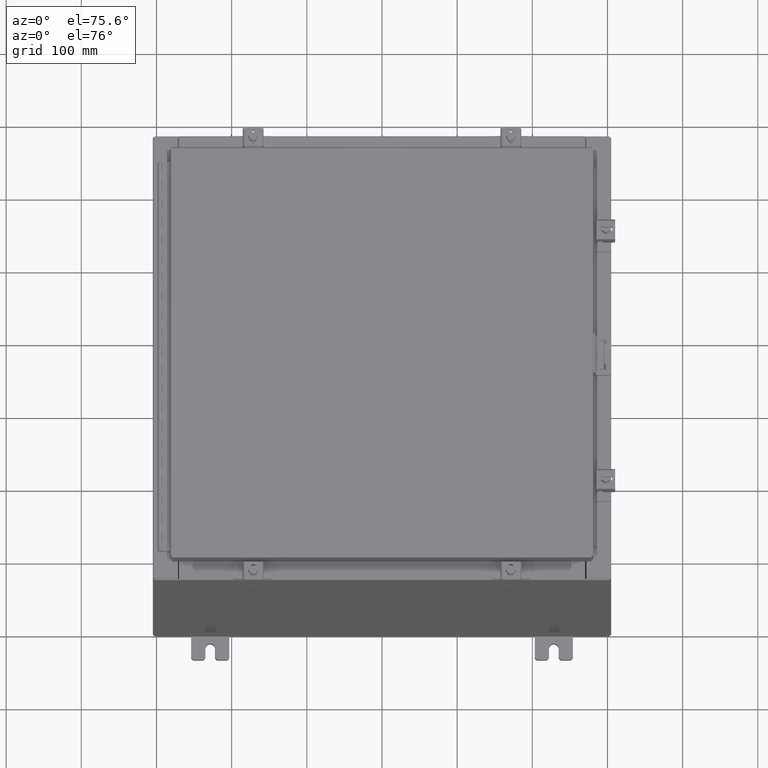
[diagram: clean part render]
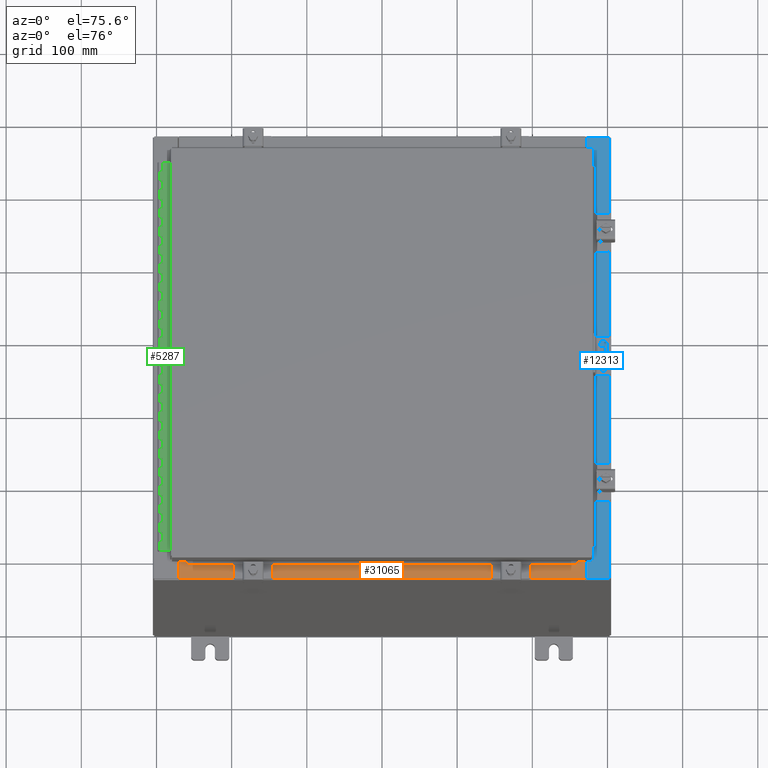
[diagram: same view with three faces highlighted in distinct colors, each labeled with its STEP entity id]
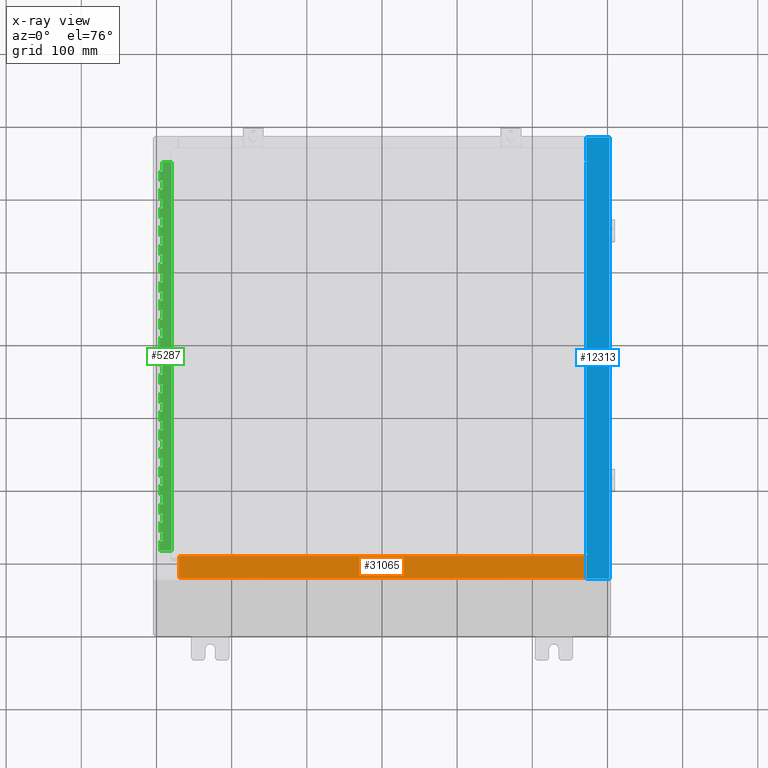
[diagram: x-ray of the same camera — body ghosted, the three highlighted faces saturated]
A machine part, auxiliary view with three faces highlighted in distinct colors.
The next image is the same camera in x-ray (body ghosted, the three faces saturated) — at least one of them is partly hidden behind the body in this view.
Their STEP definitions:

[orange] entity #31065 — the highlighted planar face has unit normal (-0, -0, 1).
#87 = PLANE ( 'NONE',  #28107 ) ;
#536 = ORIENTED_EDGE ( 'NONE', *, *, #4189, .T. ) ;
#1028 = CARTESIAN_POINT ( 'NONE',  ( -10.63720000000000200, -0.08770000000000026400, 6.000000000000001800 ) ) ;
#1446 = LINE ( 'NONE', #28170, #13257 ) ;
#2676 = CARTESIAN_POINT ( 'NONE',  ( -3.422455537835030400E-018, 1.610972251716582100E-014, 6.000000000000001800 ) ) ;
#2701 = DIRECTION ( 'NONE',  ( -0.0000000000000000000, 1.000000000000000000, -2.674785894579892700E-015 ) ) ;
#2769 = CARTESIAN_POINT ( 'NONE',  ( 10.63720000000000200, -1.287299999999998800, 6.000000000000006200 ) ) ;
#2957 = ORIENTED_EDGE ( 'NONE', *, *, #13423, .F. ) ;
#4189 = EDGE_CURVE ( 'NONE', #27070, #28362, #1446, .T. ) ;
#5225 = DIRECTION ( 'NONE',  ( 0.0000000000000000000, -1.000000000000000000, 2.674785894579892700E-015 ) ) ;
#7357 = LINE ( 'NONE', #27724, #19850 ) ;
#9517 = FACE_OUTER_BOUND ( 'NONE', #14166, .T. ) ;
#9544 = VERTEX_POINT ( 'NONE', #2769 ) ;
#12433 = CARTESIAN_POINT ( 'NONE',  ( -10.63720000000000200, -1.287299999999998100, 6.000000000000004400 ) ) ;
#13257 = VECTOR ( 'NONE', #19251, 39.37007874015748100 ) ;
#13423 = EDGE_CURVE ( 'NONE', #9544, #19119, #28802, .T. ) ;
#13658 = ORIENTED_EDGE ( 'NONE', *, *, #22190, .F. ) ;
#13860 = DIRECTION ( 'NONE',  ( -1.000000000000000000, 0.0000000000000000000, 0.0000000000000000000 ) ) ;
#14037 = CARTESIAN_POINT ( 'NONE',  ( 10.63720000000000400, -1.287299999999998800, 6.000000000000003600 ) ) ;
#14166 = EDGE_LOOP ( 'NONE', ( #15525, #2957, #13658, #536 ) ) ;
#15525 = ORIENTED_EDGE ( 'NONE', *, *, #28753, .F. ) ;
#15553 = VECTOR ( 'NONE', #13860, 39.37007874015748100 ) ;
#19119 = VERTEX_POINT ( 'NONE', #12433 ) ;
#19251 = DIRECTION ( 'NONE',  ( -1.000000000000000000, 0.0000000000000000000, 0.0000000000000000000 ) ) ;
#19814 = VECTOR ( 'NONE', #2701, 39.37007874015748100 ) ;
#19850 = VECTOR ( 'NONE', #30238, 39.37007874015748100 ) ;
#20143 = DIRECTION ( 'NONE',  ( 0.0000000000000000000, 2.674785894579892700E-015, 1.000000000000000000 ) ) ;
#22190 = EDGE_CURVE ( 'NONE', #27070, #9544, #7357, .T. ) ;
#23858 = CARTESIAN_POINT ( 'NONE',  ( 10.63720000000000400, -0.08770000000000002800, 6.000000000000001800 ) ) ;
#27070 = VERTEX_POINT ( 'NONE', #23858 ) ;
#27228 = LINE ( 'NONE', #27584, #19814 ) ;
#27584 = CARTESIAN_POINT ( 'NONE',  ( -10.63720000000000200, -0.07469999999999973900, 6.000000000000001800 ) ) ;
#27724 = CARTESIAN_POINT ( 'NONE',  ( 10.63720000000000200, -1.300299999999999800, 6.000000000000006200 ) ) ;
#28107 = AXIS2_PLACEMENT_3D ( 'NONE', #2676, #20143, #5225 ) ;
#28170 = CARTESIAN_POINT ( 'NONE',  ( -3.422455537835030400E-018, -0.08770000000000026400, 6.000000000000001800 ) ) ;
#28362 = VERTEX_POINT ( 'NONE', #1028 ) ;
#28753 = EDGE_CURVE ( 'NONE', #19119, #28362, #27228, .T. ) ;
#28802 = LINE ( 'NONE', #14037, #15553 ) ;
#30238 = DIRECTION ( 'NONE',  ( -0.0000000000000000000, -1.000000000000000000, 3.566381192773190000E-015 ) ) ;
#31065 = ADVANCED_FACE ( 'NONE', ( #9517 ), #87, .T. ) ;

[blue] entity #12313 — the highlighted planar face has unit normal (-0, 0, -1).
#268 = VERTEX_POINT ( 'NONE', #4077 ) ;
#631 = CARTESIAN_POINT ( 'NONE',  ( 10.71270000000004300, 10.59374999999998400, 11.92530000000000900 ) ) ;
#1076 = VECTOR ( 'NONE', #27878, 39.37007874015748100 ) ;
#1256 = AXIS2_PLACEMENT_3D ( 'NONE', #10384, #25072, #20069 ) ;
#1326 = VERTEX_POINT ( 'NONE', #30073 ) ;
#1703 = ORIENTED_EDGE ( 'NONE', *, *, #6124, .T. ) ;
#1774 = CIRCLE ( 'NONE', #8430, 0.01867499999999949400 ) ;
#1790 = CARTESIAN_POINT ( 'NONE',  ( 10.75005000000004300, -10.59375000000000200, 11.92530000000000900 ) ) ;
#1810 = EDGE_CURVE ( 'NONE', #1326, #22973, #21977, .T. ) ;
#2076 = VECTOR ( 'NONE', #31532, 39.37007874015748100 ) ;
#2723 = DIRECTION ( 'NONE',  ( 1.000000000000000000, 0.0000000000000000000, -7.132762385546384700E-015 ) ) ;
#2893 = DIRECTION ( 'NONE',  ( 7.132762385546384700E-015, 0.0000000000000000000, 1.000000000000000000 ) ) ;
#3795 = VERTEX_POINT ( 'NONE', #26496 ) ;
#4073 = ORIENTED_EDGE ( 'NONE', *, *, #9649, .F. ) ;
#4077 = CARTESIAN_POINT ( 'NONE',  ( 10.75005000000004300, -10.63110000000000200, 11.92530000000000900 ) ) ;
#5135 = LINE ( 'NONE', #15037, #30890 ) ;
#5543 = CARTESIAN_POINT ( 'NONE',  ( 10.69970000000004100, 0.0000000000000000000, 11.92530000000000900 ) ) ;
#6124 = EDGE_CURVE ( 'NONE', #32399, #7419, #25204, .T. ) ;
#6305 = CARTESIAN_POINT ( 'NONE',  ( 10.69970000000004100, 0.0000000000000000000, 11.92530000000000900 ) ) ;
#6580 = VERTEX_POINT ( 'NONE', #16901 ) ;
#6816 = VECTOR ( 'NONE', #25540, 39.37007874015748100 ) ;
#7171 = CARTESIAN_POINT ( 'NONE',  ( 10.75005000000004300, 10.63109999999998400, 11.92530000000000900 ) ) ;
#7404 = ORIENTED_EDGE ( 'NONE', *, *, #31565, .F. ) ;
#7419 = VERTEX_POINT ( 'NONE', #8265 ) ;
#8265 = CARTESIAN_POINT ( 'NONE',  ( 11.91230000000003900, -11.92530000000000400, 11.92530000000000000 ) ) ;
#8268 = CARTESIAN_POINT ( 'NONE',  ( 10.69970000000004100, -11.92530000000000400, 11.92530000000000900 ) ) ;
#8430 = AXIS2_PLACEMENT_3D ( 'NONE', #17812, #2893, #20345 ) ;
#8718 = LINE ( 'NONE', #26763, #2076 ) ;
#8791 = DIRECTION ( 'NONE',  ( 0.0000000000000000000, -1.000000000000000000, 0.0000000000000000000 ) ) ;
#9298 = EDGE_LOOP ( 'NONE', ( #7404, #17402, #1703, #27068, #25950, #14939, #9989, #28313, #15896, #15846, #4073, #24326 ) ) ;
#9345 = VECTOR ( 'NONE', #25030, 39.37007874015748100 ) ;
#9649 = EDGE_CURVE ( 'NONE', #13563, #20852, #5135, .T. ) ;
#9989 = ORIENTED_EDGE ( 'NONE', *, *, #18994, .F. ) ;
#10384 = CARTESIAN_POINT ( 'NONE',  ( 8.532114493236847900E-014, 0.0000000000000000000, 11.92530000000008500 ) ) ;
#10612 = VERTEX_POINT ( 'NONE', #12069 ) ;
#11202 = VECTOR ( 'NONE', #2723, 39.37007874015748100 ) ;
#11499 = CARTESIAN_POINT ( 'NONE',  ( 10.69970000000004100, -10.63110000000000200, 11.92530000000000900 ) ) ;
#12069 = CARTESIAN_POINT ( 'NONE',  ( 10.69970000000004100, 10.63109999999998600, 11.92530000000000900 ) ) ;
#12072 = DIRECTION ( 'NONE',  ( 1.000000000000000000, 0.0000000000000000000, 0.0000000000000000000 ) ) ;
#12313 = ADVANCED_FACE ( 'NONE', ( #28080 ), #28017, .F. ) ;
#12576 = VECTOR ( 'NONE', #30094, 39.37007874015748100 ) ;
#12581 = EDGE_CURVE ( 'NONE', #6580, #3795, #20250, .T. ) ;
#13563 = VERTEX_POINT ( 'NONE', #1790 ) ;
#14421 = LINE ( 'NONE', #5543, #1076 ) ;
#14939 = ORIENTED_EDGE ( 'NONE', *, *, #27500, .T. ) ;
#15037 = CARTESIAN_POINT ( 'NONE',  ( 10.75005000000004300, -10.59375000000000200, 11.92530000000000900 ) ) ;
#15159 = CARTESIAN_POINT ( 'NONE',  ( 11.91230000000003900, -11.92530000000000400, 11.92530000000000000 ) ) ;
#15342 = VECTOR ( 'NONE', #12072, 39.37007874015748100 ) ;
#15536 = CARTESIAN_POINT ( 'NONE',  ( 10.75005000000004300, 10.61242499999998400, 11.92530000000000900 ) ) ;
#15541 = DIRECTION ( 'NONE',  ( 7.132762385546384700E-015, 0.0000000000000000000, 1.000000000000000000 ) ) ;
#15577 = DIRECTION ( 'NONE',  ( 1.000000000000000000, 0.0000000000000000000, 0.0000000000000000000 ) ) ;
#15846 = ORIENTED_EDGE ( 'NONE', *, *, #27355, .F. ) ;
#15896 = ORIENTED_EDGE ( 'NONE', *, *, #19195, .F. ) ;
#16064 = VECTOR ( 'NONE', #8791, 39.37007874015748100 ) ;
#16901 = CARTESIAN_POINT ( 'NONE',  ( 10.75005000000004300, 10.59374999999998400, 11.92530000000000900 ) ) ;
#17402 = ORIENTED_EDGE ( 'NONE', *, *, #25043, .T. ) ;
#17812 = CARTESIAN_POINT ( 'NONE',  ( 10.75005000000004300, -10.61242500000000200, 11.92530000000000900 ) ) ;
#18197 = CARTESIAN_POINT ( 'NONE',  ( 8.532114493236847900E-014, 11.92529999999999600, 11.92530000000008500 ) ) ;
#18994 = EDGE_CURVE ( 'NONE', #3795, #10612, #26685, .T. ) ;
#19195 = EDGE_CURVE ( 'NONE', #19929, #6580, #8718, .T. ) ;
#19568 = CARTESIAN_POINT ( 'NONE',  ( 10.69970000000004100, -10.63110000000000200, 11.92530000000000900 ) ) ;
#19729 = AXIS2_PLACEMENT_3D ( 'NONE', #15536, #15541, #15577 ) ;
#19929 = VERTEX_POINT ( 'NONE', #631 ) ;
#20069 = DIRECTION ( 'NONE',  ( -1.000000000000000000, 0.0000000000000000000, 7.132762385546384700E-015 ) ) ;
#20250 = CIRCLE ( 'NONE', #19729, 0.01867499999999949400 ) ;
#20345 = DIRECTION ( 'NONE',  ( 1.000000000000000000, 0.0000000000000000000, 0.0000000000000000000 ) ) ;
#20852 = VERTEX_POINT ( 'NONE', #29214 ) ;
#21178 = VECTOR ( 'NONE', #31392, 39.37007874015748100 ) ;
#21977 = LINE ( 'NONE', #18197, #21178 ) ;
#22558 = DIRECTION ( 'NONE',  ( -1.000000000000000000, 0.0000000000000000000, 0.0000000000000000000 ) ) ;
#22573 = CARTESIAN_POINT ( 'NONE',  ( 10.71270000000004300, -10.59374999999999800, 11.92530000000000900 ) ) ;
#22749 = LINE ( 'NONE', #6305, #16064 ) ;
#22973 = VERTEX_POINT ( 'NONE', #29765 ) ;
#23925 = CARTESIAN_POINT ( 'NONE',  ( 8.532114493236847900E-014, -11.92530000000000400, 11.92530000000008500 ) ) ;
#24326 = ORIENTED_EDGE ( 'NONE', *, *, #29461, .F. ) ;
#25030 = DIRECTION ( 'NONE',  ( -0.0000000000000000000, 1.000000000000000000, -0.0000000000000000000 ) ) ;
#25043 = EDGE_CURVE ( 'NONE', #31981, #32399, #22749, .T. ) ;
#25072 = DIRECTION ( 'NONE',  ( -7.132762385546384700E-015, 0.0000000000000000000, -1.000000000000000000 ) ) ;
#25204 = LINE ( 'NONE', #23925, #11202 ) ;
#25540 = DIRECTION ( 'NONE',  ( -1.000000000000000000, 0.0000000000000000000, 0.0000000000000000000 ) ) ;
#25950 = ORIENTED_EDGE ( 'NONE', *, *, #1810, .T. ) ;
#26496 = CARTESIAN_POINT ( 'NONE',  ( 10.75005000000004300, 10.63109999999998400, 11.92530000000000900 ) ) ;
#26685 = LINE ( 'NONE', #7171, #6816 ) ;
#26763 = CARTESIAN_POINT ( 'NONE',  ( 10.71270000000004300, 10.59374999999998400, 11.92530000000000900 ) ) ;
#27068 = ORIENTED_EDGE ( 'NONE', *, *, #32270, .F. ) ;
#27355 = EDGE_CURVE ( 'NONE', #20852, #19929, #30042, .T. ) ;
#27378 = LINE ( 'NONE', #15159, #12576 ) ;
#27500 = EDGE_CURVE ( 'NONE', #22973, #10612, #14421, .T. ) ;
#27878 = DIRECTION ( 'NONE',  ( 0.0000000000000000000, -1.000000000000000000, 0.0000000000000000000 ) ) ;
#28017 = PLANE ( 'NONE',  #1256 ) ;
#28080 = FACE_OUTER_BOUND ( 'NONE', #9298, .T. ) ;
#28313 = ORIENTED_EDGE ( 'NONE', *, *, #12581, .F. ) ;
#28601 = LINE ( 'NONE', #19568, #15342 ) ;
#29214 = CARTESIAN_POINT ( 'NONE',  ( 10.71270000000004300, -10.59375000000000200, 11.92530000000000900 ) ) ;
#29461 = EDGE_CURVE ( 'NONE', #268, #13563, #1774, .T. ) ;
#29765 = CARTESIAN_POINT ( 'NONE',  ( 10.69970000000004100, 11.92529999999999600, 11.92530000000000900 ) ) ;
#30042 = LINE ( 'NONE', #22573, #9345 ) ;
#30073 = CARTESIAN_POINT ( 'NONE',  ( 11.91230000000003900, 11.92529999999999600, 11.92530000000000000 ) ) ;
#30094 = DIRECTION ( 'NONE',  ( -0.0000000000000000000, -1.000000000000000000, -0.0000000000000000000 ) ) ;
#30890 = VECTOR ( 'NONE', #22558, 39.37007874015748100 ) ;
#31392 = DIRECTION ( 'NONE',  ( -1.000000000000000000, 0.0000000000000000000, 7.132762385546384700E-015 ) ) ;
#31532 = DIRECTION ( 'NONE',  ( 1.000000000000000000, 0.0000000000000000000, 0.0000000000000000000 ) ) ;
#31565 = EDGE_CURVE ( 'NONE', #31981, #268, #28601, .T. ) ;
#31981 = VERTEX_POINT ( 'NONE', #11499 ) ;
#32270 = EDGE_CURVE ( 'NONE', #1326, #7419, #27378, .T. ) ;
#32399 = VERTEX_POINT ( 'NONE', #8268 ) ;

[green] entity #5287 — the highlighted planar face has unit normal (-0, -0, 1).
#10 = DIRECTION ( 'NONE',  ( 3.389037039080723100E-015, 1.000000000000000000, -0.0000000000000000000 ) ) ;
#106 = DIRECTION ( 'NONE',  ( 0.0000000000000000000, -0.0000000000000000000, -1.000000000000000000 ) ) ;
#167 = CARTESIAN_POINT ( 'NONE',  ( -0.6869999999999978300, 0.6754999999999996600, -15.50000000000000000 ) ) ;
#183 = LINE ( 'NONE', #15991, #20182 ) ;
#194 = EDGE_CURVE ( 'NONE', #16636, #10680, #6085, .T. ) ;
#214 = CARTESIAN_POINT ( 'NONE',  ( -0.6869999999999982800, 0.5504999999999997700, -10.00000000000000000 ) ) ;
#231 = VERTEX_POINT ( 'NONE', #21003 ) ;
#234 = LINE ( 'NONE', #8871, #31974 ) ;
#252 = CARTESIAN_POINT ( 'NONE',  ( -0.6869999999999978300, 0.6754999999999996600, -0.5000000000000000000 ) ) ;
#288 = CARTESIAN_POINT ( 'NONE',  ( -0.6869999999999978300, 0.6754999999999996600, -3.500000000000000000 ) ) ;
#327 = CARTESIAN_POINT ( 'NONE',  ( -0.6869999999999978300, 0.6754999999999996600, -14.49999999999999800 ) ) ;
#475 = CARTESIAN_POINT ( 'NONE',  ( -0.6869999999999978300, 0.6754999999999996600, -4.500000000000000000 ) ) ;
#477 = DIRECTION ( 'NONE',  ( 0.0000000000000000000, -0.0000000000000000000, -1.000000000000000000 ) ) ;
#550 = DIRECTION ( 'NONE',  ( 3.389037039080723100E-015, 1.000000000000000000, -0.0000000000000000000 ) ) ;
#559 = EDGE_CURVE ( 'NONE', #8083, #29694, #16567, .T. ) ;
#619 = CARTESIAN_POINT ( 'NONE',  ( -0.6869999999999982800, 0.5504999999999997700, -1.000000000000000000 ) ) ;
#817 = LINE ( 'NONE', #26938, #28973 ) ;
#829 = ORIENTED_EDGE ( 'NONE', *, *, #32150, .F. ) ;
#893 = VERTEX_POINT ( 'NONE', #23673 ) ;
#1029 = VECTOR ( 'NONE', #1254, 39.37007874015748100 ) ;
#1066 = ORIENTED_EDGE ( 'NONE', *, *, #16346, .F. ) ;
#1150 = EDGE_CURVE ( 'NONE', #8132, #13276, #25892, .T. ) ;
#1173 = CARTESIAN_POINT ( 'NONE',  ( -0.6869999999999978300, 0.6754999999999996600, -2.999999999999999600 ) ) ;
#1177 = ORIENTED_EDGE ( 'NONE', *, *, #21566, .F. ) ;
#1220 = CARTESIAN_POINT ( 'NONE',  ( -0.6869999999999973900, 0.8004999999999995500, -7.499999999999999100 ) ) ;
#1234 = ORIENTED_EDGE ( 'NONE', *, *, #23469, .F. ) ;
#1245 = CARTESIAN_POINT ( 'NONE',  ( -0.6869999999999978300, 0.6754999999999996600, -5.500000000000000000 ) ) ;
#1254 = DIRECTION ( 'NONE',  ( 0.0000000000000000000, 0.0000000000000000000, 1.000000000000000000 ) ) ;
#1270 = VERTEX_POINT ( 'NONE', #29012 ) ;
#1297 = CARTESIAN_POINT ( 'NONE',  ( -0.6869999999999978300, 0.6754999999999996600, -21.00000000000000000 ) ) ;
#1353 = ORIENTED_EDGE ( 'NONE', *, *, #8884, .F. ) ;
#1394 = EDGE_CURVE ( 'NONE', #30103, #3976, #20429, .T. ) ;
#1494 = VECTOR ( 'NONE', #20936, 39.37007874015748100 ) ;
#1529 = EDGE_CURVE ( 'NONE', #15821, #19601, #28977, .T. ) ;
#1567 = DIRECTION ( 'NONE',  ( 0.0000000000000000000, 0.0000000000000000000, 1.000000000000000000 ) ) ;
#1571 = LINE ( 'NONE', #17554, #14133 ) ;
#1669 = CARTESIAN_POINT ( 'NONE',  ( -0.6869999999999978300, 0.6754999999999996600, -21.00000000000000000 ) ) ;
#1687 = VECTOR ( 'NONE', #8045, 39.37007874015748100 ) ;
#1767 = CARTESIAN_POINT ( 'NONE',  ( -0.6869999999999982800, 0.5504999999999997700, -1.499999999999999800 ) ) ;
#1815 = CARTESIAN_POINT ( 'NONE',  ( -0.6869999999999982800, 0.5504999999999997700, -12.49999999999999800 ) ) ;
#1942 = LINE ( 'NONE', #21107, #21097 ) ;
#1992 = ORIENTED_EDGE ( 'NONE', *, *, #22370, .T. ) ;
#2048 = CARTESIAN_POINT ( 'NONE',  ( -0.6869999999999982800, 0.5504999999999997700, -2.500000000000000000 ) ) ;
#2055 = CARTESIAN_POINT ( 'NONE',  ( -0.6869999999999973900, 0.8004999999999995500, -9.500000000000000000 ) ) ;
#2115 = DIRECTION ( 'NONE',  ( -3.389037039080723100E-015, -1.000000000000000000, 0.0000000000000000000 ) ) ;
#2179 = CARTESIAN_POINT ( 'NONE',  ( -0.6869999999999982800, 0.5504999999999997700, -14.49999999999999800 ) ) ;
#2197 = VERTEX_POINT ( 'NONE', #167 ) ;
#2217 = FACE_OUTER_BOUND ( 'NONE', #28340, .T. ) ;
#2279 = CARTESIAN_POINT ( 'NONE',  ( -0.6869999999999982800, 0.5504999999999997700, -0.5000000000000000000 ) ) ;
#2306 = CARTESIAN_POINT ( 'NONE',  ( -0.6869999999999978300, 0.6754999999999996600, -17.99999999999999600 ) ) ;
#2337 = LINE ( 'NONE', #18405, #1494 ) ;
#2342 = EDGE_CURVE ( 'NONE', #1270, #5904, #29331, .T. ) ;
#2348 = CARTESIAN_POINT ( 'NONE',  ( -0.6869999999999978300, 0.6754999999999996600, -21.00000000000000000 ) ) ;
#2359 = VERTEX_POINT ( 'NONE', #6653 ) ;
#2361 = ORIENTED_EDGE ( 'NONE', *, *, #29391, .T. ) ;
#2379 = DIRECTION ( 'NONE',  ( 3.389037039080723100E-015, 1.000000000000000000, -0.0000000000000000000 ) ) ;
#2382 = DIRECTION ( 'NONE',  ( 0.0000000000000000000, -0.0000000000000000000, -1.000000000000000000 ) ) ;
#2421 = CARTESIAN_POINT ( 'NONE',  ( -0.6869999999999973900, 0.8004999999999995500, -5.000000000000000000 ) ) ;
#2479 = CARTESIAN_POINT ( 'NONE',  ( -0.6869999999999978300, 0.6754999999999996600, -7.499999999999999100 ) ) ;
#2559 = VERTEX_POINT ( 'NONE', #20799 ) ;
#2628 = LINE ( 'NONE', #1220, #28384 ) ;
#2722 = EDGE_CURVE ( 'NONE', #893, #30103, #12165, .T. ) ;
#3001 = VERTEX_POINT ( 'NONE', #29676 ) ;
#3019 = VECTOR ( 'NONE', #30546, 39.37007874015748100 ) ;
#3045 = VECTOR ( 'NONE', #5411, 39.37007874015748100 ) ;
#3117 = DIRECTION ( 'NONE',  ( 0.0000000000000000000, -0.0000000000000000000, -1.000000000000000000 ) ) ;
#3188 = EDGE_CURVE ( 'NONE', #9782, #3976, #5891, .T. ) ;
#3243 = VERTEX_POINT ( 'NONE', #6470 ) ;
#3251 = VECTOR ( 'NONE', #11115, 39.37007874015748100 ) ;
#3389 = CARTESIAN_POINT ( 'NONE',  ( -0.6869999999999973900, 0.8004999999999995500, -1.000000000000000000 ) ) ;
#3491 = LINE ( 'NONE', #2348, #29235 ) ;
#3577 = EDGE_CURVE ( 'NONE', #13276, #23707, #15591, .T. ) ;
#3723 = VERTEX_POINT ( 'NONE', #30867 ) ;
#3727 = LINE ( 'NONE', #4398, #29485 ) ;
#3741 = EDGE_CURVE ( 'NONE', #27276, #19583, #32408, .T. ) ;
#3761 = LINE ( 'NONE', #26890, #29517 ) ;
#3951 = ORIENTED_EDGE ( 'NONE', *, *, #10712, .T. ) ;
#3976 = VERTEX_POINT ( 'NONE', #29255 ) ;
#3985 = VECTOR ( 'NONE', #24953, 39.37007874015748100 ) ;
#4029 = CARTESIAN_POINT ( 'NONE',  ( -0.6869999999999973900, 0.8004999999999995500, -1.499999999999999800 ) ) ;
#4041 = LINE ( 'NONE', #6084, #3251 ) ;
#4060 = CARTESIAN_POINT ( 'NONE',  ( -0.6869999999999982800, 0.5504999999999997700, -15.50000000000000000 ) ) ;
#4068 = LINE ( 'NONE', #5458, #23217 ) ;
#4143 = DIRECTION ( 'NONE',  ( 0.0000000000000000000, -0.0000000000000000000, -1.000000000000000000 ) ) ;
#4179 = DIRECTION ( 'NONE',  ( -3.389037039080723100E-015, -1.000000000000000000, 0.0000000000000000000 ) ) ;
#4196 = DIRECTION ( 'NONE',  ( 0.0000000000000000000, 0.0000000000000000000, 1.000000000000000000 ) ) ;
#4276 = EDGE_CURVE ( 'NONE', #5904, #19040, #11704, .T. ) ;
#4281 = VECTOR ( 'NONE', #15442, 39.37007874015748100 ) ;
#4288 = DIRECTION ( 'NONE',  ( 0.0000000000000000000, 0.0000000000000000000, 1.000000000000000000 ) ) ;
#4291 = VERTEX_POINT ( 'NONE', #17500 ) ;
#4303 = CARTESIAN_POINT ( 'NONE',  ( -0.6869999999999982800, 0.5504999999999997700, -3.500000000000000000 ) ) ;
#4306 = CARTESIAN_POINT ( 'NONE',  ( -0.6869999999999982800, 0.5504999999999997700, -19.50000000000000000 ) ) ;
#4342 = CARTESIAN_POINT ( 'NONE',  ( -0.6869999999999978300, 0.6754999999999996600, -21.00000000000000000 ) ) ;
#4398 = CARTESIAN_POINT ( 'NONE',  ( -0.6869999999999973900, 0.8004999999999995500, -14.00000000000000000 ) ) ;
#4417 = CARTESIAN_POINT ( 'NONE',  ( -0.6869999999999982800, 0.5504999999999997700, -4.000000000000000000 ) ) ;
#4428 = VECTOR ( 'NONE', #16577, 39.37007874015748100 ) ;
#4772 = EDGE_CURVE ( 'NONE', #17927, #12200, #16292, .T. ) ;
#4829 = VERTEX_POINT ( 'NONE', #14442 ) ;
#4956 = LINE ( 'NONE', #4977, #23310 ) ;
#4977 = CARTESIAN_POINT ( 'NONE',  ( -0.6869999999999978300, 0.6754999999999996600, -21.00000000000000000 ) ) ;
#5008 = EDGE_CURVE ( 'NONE', #9782, #17942, #2628, .T. ) ;
#5105 = ORIENTED_EDGE ( 'NONE', *, *, #11322, .F. ) ;
#5131 = CARTESIAN_POINT ( 'NONE',  ( -0.6869999999999978300, 0.6754999999999996600, -18.50000000000000000 ) ) ;
#5226 = LINE ( 'NONE', #2421, #24337 ) ;
#5233 = LINE ( 'NONE', #16421, #23576 ) ;
#5252 = EDGE_CURVE ( 'NONE', #18422, #10465, #16264, .T. ) ;
#5258 = VERTEX_POINT ( 'NONE', #31471 ) ;
#5278 = VERTEX_POINT ( 'NONE', #23362 ) ;
#5287 = ADVANCED_FACE ( 'NONE', ( #2217 ), #22664, .T. ) ;
#5327 = LINE ( 'NONE', #22532, #25195 ) ;
#5335 = ORIENTED_EDGE ( 'NONE', *, *, #26558, .F. ) ;
#5380 = CARTESIAN_POINT ( 'NONE',  ( -0.6869999999999982800, 0.5504999999999997700, -7.000000000000000000 ) ) ;
#5411 = DIRECTION ( 'NONE',  ( 0.0000000000000000000, 0.0000000000000000000, 1.000000000000000000 ) ) ;
#5458 = CARTESIAN_POINT ( 'NONE',  ( -0.6869999999999978300, 0.6754999999999996600, -21.00000000000000000 ) ) ;
#5471 = VECTOR ( 'NONE', #15755, 39.37007874015748100 ) ;
#5532 = VECTOR ( 'NONE', #21252, 39.37007874015748100 ) ;
#5536 = LINE ( 'NONE', #17323, #23090 ) ;
#5538 = ORIENTED_EDGE ( 'NONE', *, *, #559, .T. ) ;
#5539 = ORIENTED_EDGE ( 'NONE', *, *, #30067, .F. ) ;
#5570 = DIRECTION ( 'NONE',  ( 0.0000000000000000000, -0.0000000000000000000, -1.000000000000000000 ) ) ;
#5609 = DIRECTION ( 'NONE',  ( 0.0000000000000000000, 0.0000000000000000000, 1.000000000000000000 ) ) ;
#5618 = DIRECTION ( 'NONE',  ( -3.389037039080723100E-015, -1.000000000000000000, 0.0000000000000000000 ) ) ;
#5641 = LINE ( 'NONE', #24859, #31365 ) ;
#5691 = VERTEX_POINT ( 'NONE', #4417 ) ;
#5736 = CARTESIAN_POINT ( 'NONE',  ( -0.6869999999999982800, 0.5504999999999997700, -11.50000000000000000 ) ) ;
#5745 = VECTOR ( 'NONE', #10, 39.37007874015748100 ) ;
#5812 = DIRECTION ( 'NONE',  ( -3.389037039080723100E-015, -1.000000000000000000, 0.0000000000000000000 ) ) ;
#5823 = EDGE_CURVE ( 'NONE', #231, #12267, #16233, .T. ) ;
#5831 = VECTOR ( 'NONE', #16276, 39.37007874015748100 ) ;
#5877 = EDGE_CURVE ( 'NONE', #24802, #2359, #24825, .T. ) ;
#5891 = LINE ( 'NONE', #16430, #18352 ) ;
#5904 = VERTEX_POINT ( 'NONE', #6556 ) ;
#5917 = DIRECTION ( 'NONE',  ( 3.389037039080723100E-015, 1.000000000000000000, -0.0000000000000000000 ) ) ;
#5956 = LINE ( 'NONE', #29505, #19210 ) ;
#5997 = ORIENTED_EDGE ( 'NONE', *, *, #5877, .F. ) ;
#6033 = ORIENTED_EDGE ( 'NONE', *, *, #5252, .F. ) ;
#6041 = ORIENTED_EDGE ( 'NONE', *, *, #28393, .F. ) ;
#6084 = CARTESIAN_POINT ( 'NONE',  ( -0.6869999999999973900, 0.8004999999999995500, -16.00000000000000000 ) ) ;
#6085 = LINE ( 'NONE', #29582, #18549 ) ;
#6098 = VECTOR ( 'NONE', #26520, 39.37007874015748100 ) ;
#6114 = ORIENTED_EDGE ( 'NONE', *, *, #30795, .T. ) ;
#6185 = LINE ( 'NONE', #30244, #31956 ) ;
#6218 = VERTEX_POINT ( 'NONE', #13327 ) ;
#6243 = LINE ( 'NONE', #19590, #31213 ) ;
#6297 = VECTOR ( 'NONE', #21939, 39.37007874015748100 ) ;
#6470 = CARTESIAN_POINT ( 'NONE',  ( -0.6869999999999978300, 0.6754999999999996600, -16.00000000000000000 ) ) ;
#6536 = EDGE_CURVE ( 'NONE', #21119, #17035, #20112, .T. ) ;
#6556 = CARTESIAN_POINT ( 'NONE',  ( -0.6869999999999982800, 0.5504999999999997700, -11.50000000000000000 ) ) ;
#6587 = VECTOR ( 'NONE', #5609, 39.37007874015748100 ) ;
#6617 = LINE ( 'NONE', #24155, #31576 ) ;
#6653 = CARTESIAN_POINT ( 'NONE',  ( -0.6869999999999978300, 0.6754999999999996600, -10.00000000000000000 ) ) ;
#6739 = LINE ( 'NONE', #19699, #25825 ) ;
#6748 = DIRECTION ( 'NONE',  ( -3.389037039080723100E-015, -1.000000000000000000, 0.0000000000000000000 ) ) ;
#6751 = CARTESIAN_POINT ( 'NONE',  ( -0.6869999999999982800, 0.5504999999999997700, -13.50000000000000000 ) ) ;
#6796 = CARTESIAN_POINT ( 'NONE',  ( -0.6869999999999982800, 0.5504999999999997700, -21.00000000000000000 ) ) ;
#6803 = CARTESIAN_POINT ( 'NONE',  ( -0.6869999999999982800, 0.5504999999999997700, -15.50000000000000000 ) ) ;
#6814 = CARTESIAN_POINT ( 'NONE',  ( -0.6869999999999982800, 0.5504999999999997700, -2.000000000000000000 ) ) ;
#6827 = LINE ( 'NONE', #6803, #8372 ) ;
#6848 = VECTOR ( 'NONE', #5812, 39.37007874015748100 ) ;
#6904 = CARTESIAN_POINT ( 'NONE',  ( -0.6869999999999978300, 0.6754999999999996600, -21.00000000000000000 ) ) ;
#6928 = VERTEX_POINT ( 'NONE', #21604 ) ;
#6933 = DIRECTION ( 'NONE',  ( 0.0000000000000000000, 0.0000000000000000000, 1.000000000000000000 ) ) ;
#7056 = ORIENTED_EDGE ( 'NONE', *, *, #14367, .F. ) ;
#7088 = EDGE_CURVE ( 'NONE', #16988, #5278, #6827, .T. ) ;
#7109 = DIRECTION ( 'NONE',  ( -3.389037039080723100E-015, -1.000000000000000000, 0.0000000000000000000 ) ) ;
#7141 = EDGE_CURVE ( 'NONE', #20720, #15508, #19314, .T. ) ;
#7200 = DIRECTION ( 'NONE',  ( 3.389037039080723100E-015, 1.000000000000000000, -0.0000000000000000000 ) ) ;
#7293 = CARTESIAN_POINT ( 'NONE',  ( -0.6869999999999978300, 0.6754999999999996600, -11.00000000000000000 ) ) ;
#7350 = LINE ( 'NONE', #13134, #6587 ) ;
#7374 = VECTOR ( 'NONE', #4288, 39.37007874015748100 ) ;
#7398 = CARTESIAN_POINT ( 'NONE',  ( -0.6870000000000022800, -0.6245000000000003900, 0.0000000000000000000 ) ) ;
#7480 = DIRECTION ( 'NONE',  ( 0.0000000000000000000, 0.0000000000000000000, 1.000000000000000000 ) ) ;
#7515 = ORIENTED_EDGE ( 'NONE', *, *, #25167, .F. ) ;
#7523 = DIRECTION ( 'NONE',  ( 0.0000000000000000000, 0.0000000000000000000, 1.000000000000000000 ) ) ;
#7613 = ORIENTED_EDGE ( 'NONE', *, *, #3741, .F. ) ;
#7620 = EDGE_CURVE ( 'NONE', #13172, #21822, #5233, .T. ) ;
#7625 = EDGE_CURVE ( 'NONE', #15508, #22745, #30190, .T. ) ;
#7633 = LINE ( 'NONE', #13238, #6848 ) ;
#7666 = CARTESIAN_POINT ( 'NONE',  ( -0.6869999999999973900, 0.8004999999999995500, -17.99999999999999600 ) ) ;
#7685 = EDGE_CURVE ( 'NONE', #22811, #2559, #16920, .T. ) ;
#7757 = VERTEX_POINT ( 'NONE', #17564 ) ;
#7783 = DIRECTION ( 'NONE',  ( -3.389037039080723100E-015, -1.000000000000000000, 0.0000000000000000000 ) ) ;
#7849 = VERTEX_POINT ( 'NONE', #31310 ) ;
#7874 = CARTESIAN_POINT ( 'NONE',  ( -0.6869999999999978300, 0.6754999999999996600, -12.49999999999999800 ) ) ;
#7887 = LINE ( 'NONE', #11787, #26998 ) ;
#7930 = EDGE_CURVE ( 'NONE', #15076, #27752, #817, .T. ) ;
#7951 = CARTESIAN_POINT ( 'NONE',  ( -0.6869999999999978300, 0.6754999999999996600, -1.000000000000000000 ) ) ;
#8014 = VERTEX_POINT ( 'NONE', #20165 ) ;
#8045 = DIRECTION ( 'NONE',  ( 0.0000000000000000000, -0.0000000000000000000, -1.000000000000000000 ) ) ;
#8061 = LINE ( 'NONE', #1669, #27179 ) ;
#8083 = VERTEX_POINT ( 'NONE', #18074 ) ;
#8132 = VERTEX_POINT ( 'NONE', #252 ) ;
#8218 = ORIENTED_EDGE ( 'NONE', *, *, #17903, .T. ) ;
#8219 = LINE ( 'NONE', #19958, #28135 ) ;
#8340 = CARTESIAN_POINT ( 'NONE',  ( -0.6869999999999973900, 0.8004999999999995500, -9.000000000000000000 ) ) ;
#8372 = VECTOR ( 'NONE', #26955, 39.37007874015748100 ) ;
#8384 = ORIENTED_EDGE ( 'NONE', *, *, #23901, .F. ) ;
#8391 = CARTESIAN_POINT ( 'NONE',  ( -0.6869999999999978300, 0.6754999999999996600, -19.00000000000000000 ) ) ;
#8393 = VERTEX_POINT ( 'NONE', #26597 ) ;
#8417 = ORIENTED_EDGE ( 'NONE', *, *, #1150, .F. ) ;
#8684 = VERTEX_POINT ( 'NONE', #22228 ) ;
#8703 = EDGE_CURVE ( 'NONE', #29593, #16067, #17208, .T. ) ;
#8870 = ORIENTED_EDGE ( 'NONE', *, *, #4276, .F. ) ;
#8871 = CARTESIAN_POINT ( 'NONE',  ( -0.6869999999999978300, 0.6754999999999996600, -21.00000000000000000 ) ) ;
#8884 = EDGE_CURVE ( 'NONE', #8393, #19263, #25452, .T. ) ;
#8947 = VECTOR ( 'NONE', #20767, 39.37007874015748100 ) ;
#9143 = DIRECTION ( 'NONE',  ( -3.389037039080723100E-015, -1.000000000000000000, 0.0000000000000000000 ) ) ;
#9147 = EDGE_CURVE ( 'NONE', #19040, #12200, #6739, .T. ) ;
#9176 = EDGE_CURVE ( 'NONE', #19263, #27004, #5956, .T. ) ;
#9260 = CARTESIAN_POINT ( 'NONE',  ( -0.6869999999999978300, 0.6754999999999996600, -17.50000000000000000 ) ) ;
#9339 = ORIENTED_EDGE ( 'NONE', *, *, #17677, .F. ) ;
#9656 = LINE ( 'NONE', #12891, #14721 ) ;
#9688 = VERTEX_POINT ( 'NONE', #24426 ) ;
#9703 = CARTESIAN_POINT ( 'NONE',  ( -0.6869999999999982800, 0.5504999999999997700, -3.500000000000000000 ) ) ;
#9782 = VERTEX_POINT ( 'NONE', #2479 ) ;
#9821 = LINE ( 'NONE', #2048, #28922 ) ;
#10031 = EDGE_CURVE ( 'NONE', #14558, #5691, #20709, .T. ) ;
#10060 = DIRECTION ( 'NONE',  ( 0.0000000000000000000, -0.0000000000000000000, -1.000000000000000000 ) ) ;
#10109 = VECTOR ( 'NONE', #12106, 39.37007874015748100 ) ;
#10130 = LINE ( 'NONE', #30605, #22649 ) ;
#10226 = DIRECTION ( 'NONE',  ( 3.389037039080723100E-015, 1.000000000000000000, -0.0000000000000000000 ) ) ;
#10392 = VECTOR ( 'NONE', #15183, 39.37007874015748100 ) ;
#10422 = CARTESIAN_POINT ( 'NONE',  ( -0.6869999999999982800, 0.5504999999999997700, -20.00000000000000000 ) ) ;
#10461 = LINE ( 'NONE', #14156, #22948 ) ;
#10465 = VERTEX_POINT ( 'NONE', #17090 ) ;
#10483 = LINE ( 'NONE', #1815, #11265 ) ;
#10640 = CARTESIAN_POINT ( 'NONE',  ( -0.6869999999999998300, 0.07549999999999991400, -21.00000000000000000 ) ) ;
#10680 = VERTEX_POINT ( 'NONE', #28369 ) ;
#10712 = EDGE_CURVE ( 'NONE', #15821, #2359, #3491, .T. ) ;
#10762 = VECTOR ( 'NONE', #6933, 39.37007874015748100 ) ;
#10777 = ORIENTED_EDGE ( 'NONE', *, *, #20086, .T. ) ;
#10879 = CARTESIAN_POINT ( 'NONE',  ( -0.6869999999999998300, 0.07549999999999991400, 0.0000000000000000000 ) ) ;
#11062 = ORIENTED_EDGE ( 'NONE', *, *, #22575, .F. ) ;
#11083 = ORIENTED_EDGE ( 'NONE', *, *, #4772, .T. ) ;
#11094 = EDGE_CURVE ( 'NONE', #6218, #14585, #13258, .T. ) ;
#11115 = DIRECTION ( 'NONE',  ( 3.389037039080723100E-015, 1.000000000000000000, -0.0000000000000000000 ) ) ;
#11118 = ORIENTED_EDGE ( 'NONE', *, *, #31273, .F. ) ;
#11127 = EDGE_CURVE ( 'NONE', #8684, #29694, #12474, .T. ) ;
#11133 = ORIENTED_EDGE ( 'NONE', *, *, #11094, .T. ) ;
#11169 = ORIENTED_EDGE ( 'NONE', *, *, #7088, .F. ) ;
#11186 = LINE ( 'NONE', #20091, #10392 ) ;
#11194 = CARTESIAN_POINT ( 'NONE',  ( -0.6869999999999973900, 0.8004999999999995500, -10.50000000000000000 ) ) ;
#11234 = ORIENTED_EDGE ( 'NONE', *, *, #29003, .F. ) ;
#11265 = VECTOR ( 'NONE', #19324, 39.37007874015748100 ) ;
#11322 = EDGE_CURVE ( 'NONE', #26168, #29593, #13624, .T. ) ;
#11330 = EDGE_CURVE ( 'NONE', #32109, #28858, #234, .T. ) ;
#11334 = LINE ( 'NONE', #20576, #30426 ) ;
#11407 = ORIENTED_EDGE ( 'NONE', *, *, #5823, .T. ) ;
#11591 = EDGE_CURVE ( 'NONE', #28528, #28858, #1942, .T. ) ;
#11627 = DIRECTION ( 'NONE',  ( 0.0000000000000000000, 0.0000000000000000000, 1.000000000000000000 ) ) ;
#11704 = LINE ( 'NONE', #5736, #10109 ) ;
#11714 = DIRECTION ( 'NONE',  ( 3.389037039080723100E-015, 1.000000000000000000, -0.0000000000000000000 ) ) ;
#11772 = CARTESIAN_POINT ( 'NONE',  ( -0.6869999999999982800, 0.5504999999999997700, -17.50000000000000000 ) ) ;
#11787 = CARTESIAN_POINT ( 'NONE',  ( -0.6869999999999973900, 0.8004999999999995500, -12.49999999999999800 ) ) ;
#11850 = ORIENTED_EDGE ( 'NONE', *, *, #9147, .F. ) ;
#11996 = EDGE_CURVE ( 'NONE', #21119, #8014, #30846, .T. ) ;
#12106 = DIRECTION ( 'NONE',  ( 0.0000000000000000000, -0.0000000000000000000, -1.000000000000000000 ) ) ;
#12165 = LINE ( 'NONE', #18721, #5532 ) ;
#12200 = VERTEX_POINT ( 'NONE', #30231 ) ;
#12267 = VERTEX_POINT ( 'NONE', #29609 ) ;
#12288 = CARTESIAN_POINT ( 'NONE',  ( -0.6869999999999982800, 0.5504999999999997700, -13.50000000000000000 ) ) ;
#12332 = ORIENTED_EDGE ( 'NONE', *, *, #1529, .F. ) ;
#12335 = VECTOR ( 'NONE', #25518, 39.37007874015748100 ) ;
#12443 = ORIENTED_EDGE ( 'NONE', *, *, #17850, .F. ) ;
#12447 = CARTESIAN_POINT ( 'NONE',  ( -0.6869999999999978300, 0.6754999999999996600, -2.000000000000000000 ) ) ;
#12460 = VECTOR ( 'NONE', #21420, 39.37007874015748100 ) ;
#12474 = LINE ( 'NONE', #30938, #5831 ) ;
#12658 = CARTESIAN_POINT ( 'NONE',  ( -0.6869999999999982800, 0.5504999999999997700, -2.999999999999999600 ) ) ;
#12705 = VECTOR ( 'NONE', #7109, 39.37007874015748100 ) ;
#12775 = ORIENTED_EDGE ( 'NONE', *, *, #11591, .F. ) ;
#12816 = EDGE_CURVE ( 'NONE', #231, #893, #32351, .T. ) ;
#12866 = EDGE_CURVE ( 'NONE', #3001, #21943, #11334, .T. ) ;
#12870 = VECTOR ( 'NONE', #29010, 39.37007874015748100 ) ;
#12891 = CARTESIAN_POINT ( 'NONE',  ( -0.6869999999999973900, 0.8004999999999995500, -15.50000000000000000 ) ) ;
#13134 = CARTESIAN_POINT ( 'NONE',  ( -0.6869999999999978300, 0.6754999999999996600, -21.00000000000000000 ) ) ;
#13172 = VERTEX_POINT ( 'NONE', #31052 ) ;
#13196 = EDGE_CURVE ( 'NONE', #6218, #8393, #10130, .T. ) ;
#13238 = CARTESIAN_POINT ( 'NONE',  ( -0.6869999999999973900, 0.8004999999999995500, -8.500000000000000000 ) ) ;
#13258 = LINE ( 'NONE', #20423, #7374 ) ;
#13276 = VERTEX_POINT ( 'NONE', #28441 ) ;
#13327 = CARTESIAN_POINT ( 'NONE',  ( -0.6869999999999978300, 0.6754999999999996600, -19.50000000000000000 ) ) ;
#13443 = VERTEX_POINT ( 'NONE', #12288 ) ;
#13500 = VECTOR ( 'NONE', #17629, 39.37007874015748100 ) ;
#13514 = CARTESIAN_POINT ( 'NONE',  ( -0.6869999999999973900, 0.8004999999999995500, -2.500000000000000000 ) ) ;
#13533 = ORIENTED_EDGE ( 'NONE', *, *, #23104, .F. ) ;
#13624 = LINE ( 'NONE', #25157, #12870 ) ;
#13661 = DIRECTION ( 'NONE',  ( -3.389037039080723100E-015, -1.000000000000000000, 0.0000000000000000000 ) ) ;
#13777 = EDGE_CURVE ( 'NONE', #8083, #13443, #6185, .T. ) ;
#13823 = CARTESIAN_POINT ( 'NONE',  ( -0.6869999999999978300, 0.6754999999999996600, -10.50000000000000000 ) ) ;
#13858 = ORIENTED_EDGE ( 'NONE', *, *, #11330, .T. ) ;
#13903 = VECTOR ( 'NONE', #11627, 39.37007874015748100 ) ;
#13915 = ORIENTED_EDGE ( 'NONE', *, *, #1394, .F. ) ;
#13921 = CARTESIAN_POINT ( 'NONE',  ( -0.6870000000000022800, -0.6245000000000003900, -21.00000000000000000 ) ) ;
#13948 = LINE ( 'NONE', #30089, #26415 ) ;
#13983 = ORIENTED_EDGE ( 'NONE', *, *, #3577, .F. ) ;
#13998 = DIRECTION ( 'NONE',  ( 3.389037039080723100E-015, 1.000000000000000000, -0.0000000000000000000 ) ) ;
#14074 = VECTOR ( 'NONE', #5570, 39.37007874015748100 ) ;
#14133 = VECTOR ( 'NONE', #17231, 39.37007874015748100 ) ;
#14156 = CARTESIAN_POINT ( 'NONE',  ( -0.6869999999999973900, 0.8004999999999995500, -2.000000000000000000 ) ) ;
#14187 = LINE ( 'NONE', #1297, #20040 ) ;
#14367 = EDGE_CURVE ( 'NONE', #26010, #30670, #10461, .T. ) ;
#14374 = LINE ( 'NONE', #18754, #1029 ) ;
#14442 = CARTESIAN_POINT ( 'NONE',  ( -0.6869999999999978300, 0.6754999999999996600, -1.499999999999999800 ) ) ;
#14446 = CARTESIAN_POINT ( 'NONE',  ( -0.6869999999999973900, 0.8004999999999995500, -10.00000000000000000 ) ) ;
#14512 = VECTOR ( 'NONE', #14677, 39.37007874015748100 ) ;
#14532 = VECTOR ( 'NONE', #14569, 39.37007874015748100 ) ;
#14558 = VERTEX_POINT ( 'NONE', #9703 ) ;
#14569 = DIRECTION ( 'NONE',  ( 0.0000000000000000000, -0.0000000000000000000, -1.000000000000000000 ) ) ;
#14585 = VERTEX_POINT ( 'NONE', #8391 ) ;
#14669 = ORIENTED_EDGE ( 'NONE', *, *, #27582, .F. ) ;
#14677 = DIRECTION ( 'NONE',  ( -3.389037039080723100E-015, -1.000000000000000000, 0.0000000000000000000 ) ) ;
#14721 = VECTOR ( 'NONE', #27790, 39.37007874015748100 ) ;
#14736 = ORIENTED_EDGE ( 'NONE', *, *, #23829, .T. ) ;
#14809 = VERTEX_POINT ( 'NONE', #288 ) ;
#14828 = LINE ( 'NONE', #6751, #28101 ) ;
#14874 = ORIENTED_EDGE ( 'NONE', *, *, #7625, .F. ) ;
#14896 = EDGE_CURVE ( 'NONE', #27276, #21720, #8061, .T. ) ;
#15054 = CARTESIAN_POINT ( 'NONE',  ( -0.6869999999999978300, 0.6754999999999996600, -2.500000000000000000 ) ) ;
#15076 = VERTEX_POINT ( 'NONE', #12658 ) ;
#15152 = LINE ( 'NONE', #18656, #27636 ) ;
#15183 = DIRECTION ( 'NONE',  ( 0.0000000000000000000, -0.0000000000000000000, -1.000000000000000000 ) ) ;
#15297 = CARTESIAN_POINT ( 'NONE',  ( -0.6869999999999978300, 0.6754999999999996600, 0.0000000000000000000 ) ) ;
#15323 = CARTESIAN_POINT ( 'NONE',  ( -0.6869999999999978300, 0.6754999999999996600, -9.000000000000000000 ) ) ;
#15335 = CARTESIAN_POINT ( 'NONE',  ( -0.6869999999999978300, 0.6754999999999996600, -21.00000000000000000 ) ) ;
#15426 = CARTESIAN_POINT ( 'NONE',  ( -0.6869999999999982800, 0.5504999999999997700, -4.500000000000000000 ) ) ;
#15429 = ORIENTED_EDGE ( 'NONE', *, *, #12816, .F. ) ;
#15442 = DIRECTION ( 'NONE',  ( 0.0000000000000000000, 0.0000000000000000000, 1.000000000000000000 ) ) ;
#15476 = ORIENTED_EDGE ( 'NONE', *, *, #26707, .T. ) ;
#15508 = VERTEX_POINT ( 'NONE', #24998 ) ;
#15522 = LINE ( 'NONE', #3389, #28025 ) ;
#15591 = LINE ( 'NONE', #2279, #8947 ) ;
#15691 = LINE ( 'NONE', #7666, #3985 ) ;
#15755 = DIRECTION ( 'NONE',  ( 3.389037039080723100E-015, 1.000000000000000000, -0.0000000000000000000 ) ) ;
#15767 = ORIENTED_EDGE ( 'NONE', *, *, #28246, .T. ) ;
#15821 = VERTEX_POINT ( 'NONE', #13823 ) ;
#15851 = ORIENTED_EDGE ( 'NONE', *, *, #3188, .T. ) ;
#15973 = VERTEX_POINT ( 'NONE', #17785 ) ;
#15991 = CARTESIAN_POINT ( 'NONE',  ( -0.6869999999999973900, 0.8004999999999995500, -17.50000000000000000 ) ) ;
#16067 = VERTEX_POINT ( 'NONE', #15297 ) ;
#16123 = VECTOR ( 'NONE', #24230, 39.37007874015748100 ) ;
#16139 = LINE ( 'NONE', #31211, #20446 ) ;
#16172 = CARTESIAN_POINT ( 'NONE',  ( -0.6869999999999978300, 0.6754999999999996600, -21.00000000000000000 ) ) ;
#16233 = LINE ( 'NONE', #4342, #13903 ) ;
#16256 = EDGE_CURVE ( 'NONE', #5258, #6928, #28281, .T. ) ;
#16264 = LINE ( 'NONE', #23841, #3019 ) ;
#16266 = CARTESIAN_POINT ( 'NONE',  ( -0.6869999999999978300, 0.6754999999999996600, -12.99999999999999800 ) ) ;
#16276 = DIRECTION ( 'NONE',  ( 3.389037039080723100E-015, 1.000000000000000000, -0.0000000000000000000 ) ) ;
#16292 = LINE ( 'NONE', #18228, #3045 ) ;
#16346 = EDGE_CURVE ( 'NONE', #28708, #22343, #25143, .T. ) ;
#16396 = DIRECTION ( 'NONE',  ( 0.0000000000000000000, 0.0000000000000000000, 1.000000000000000000 ) ) ;
#16416 = DIRECTION ( 'NONE',  ( 3.369016658928398200E-015, 1.000000000000000000, 0.0000000000000000000 ) ) ;
#16421 = CARTESIAN_POINT ( 'NONE',  ( -0.6869999999999973900, 0.8004999999999995500, -14.99999999999999800 ) ) ;
#16430 = CARTESIAN_POINT ( 'NONE',  ( -0.6869999999999978300, 0.6754999999999996600, -21.00000000000000000 ) ) ;
#16439 = LINE ( 'NONE', #24657, #23117 ) ;
#16502 = VECTOR ( 'NONE', #32307, 39.37007874015748100 ) ;
#16567 = LINE ( 'NONE', #6904, #10762 ) ;
#16577 = DIRECTION ( 'NONE',  ( 0.0000000000000000000, -0.0000000000000000000, -1.000000000000000000 ) ) ;
#16608 = ORIENTED_EDGE ( 'NONE', *, *, #10031, .F. ) ;
#16636 = VERTEX_POINT ( 'NONE', #11772 ) ;
#16649 = CARTESIAN_POINT ( 'NONE',  ( -0.6869999999999982800, 0.5504999999999997700, -5.500000000000000000 ) ) ;
#16786 = CARTESIAN_POINT ( 'NONE',  ( -0.6869999999999982800, 0.5504999999999997700, -8.000000000000000000 ) ) ;
#16920 = LINE ( 'NONE', #23974, #16123 ) ;
#16932 = ORIENTED_EDGE ( 'NONE', *, *, #31372, .T. ) ;
#16988 = VERTEX_POINT ( 'NONE', #4060 ) ;
#17014 = ORIENTED_EDGE ( 'NONE', *, *, #7930, .F. ) ;
#17016 = CARTESIAN_POINT ( 'NONE',  ( -0.6869999999999978300, 0.6754999999999996600, -8.500000000000000000 ) ) ;
#17035 = VERTEX_POINT ( 'NONE', #2179 ) ;
#17090 = CARTESIAN_POINT ( 'NONE',  ( -0.6869999999999982800, 0.5504999999999997700, -18.50000000000000000 ) ) ;
#17192 = ORIENTED_EDGE ( 'NONE', *, *, #27789, .F. ) ;
#17208 = LINE ( 'NONE', #7398, #30499 ) ;
#17231 = DIRECTION ( 'NONE',  ( 0.0000000000000000000, 0.0000000000000000000, 1.000000000000000000 ) ) ;
#17323 = CARTESIAN_POINT ( 'NONE',  ( -0.6869999999999973900, 0.8004999999999995500, -4.000000000000000000 ) ) ;
#17500 = CARTESIAN_POINT ( 'NONE',  ( -0.6869999999999978300, 0.6754999999999996600, -16.50000000000000000 ) ) ;
#17518 = CARTESIAN_POINT ( 'NONE',  ( -0.6869999999999978300, 0.6754999999999996600, -5.000000000000000000 ) ) ;
#17553 = VECTOR ( 'NONE', #19990, 39.37007874015748100 ) ;
#17554 = CARTESIAN_POINT ( 'NONE',  ( -0.6869999999999978300, 0.6754999999999996600, -21.00000000000000000 ) ) ;
#17564 = CARTESIAN_POINT ( 'NONE',  ( -0.6869999999999982800, 0.5504999999999997700, -11.00000000000000000 ) ) ;
#17565 = CARTESIAN_POINT ( 'NONE',  ( -0.6869999999999982800, 0.5504999999999997700, -16.50000000000000000 ) ) ;
#17588 = ORIENTED_EDGE ( 'NONE', *, *, #19241, .F. ) ;
#17629 = DIRECTION ( 'NONE',  ( -3.389037039080723100E-015, -1.000000000000000000, 0.0000000000000000000 ) ) ;
#17677 = EDGE_CURVE ( 'NONE', #3723, #26010, #20388, .T. ) ;
#17785 = CARTESIAN_POINT ( 'NONE',  ( -0.6869999999999978300, 0.6754999999999996600, -4.000000000000000000 ) ) ;
#17850 = EDGE_CURVE ( 'NONE', #10680, #22077, #15691, .T. ) ;
#17903 = EDGE_CURVE ( 'NONE', #14809, #27752, #1571, .T. ) ;
#17927 = VERTEX_POINT ( 'NONE', #7874 ) ;
#17942 = VERTEX_POINT ( 'NONE', #30012 ) ;
#18007 = ORIENTED_EDGE ( 'NONE', *, *, #11127, .F. ) ;
#18074 = CARTESIAN_POINT ( 'NONE',  ( -0.6869999999999978300, 0.6754999999999996600, -13.50000000000000000 ) ) ;
#18228 = CARTESIAN_POINT ( 'NONE',  ( -0.6869999999999978300, 0.6754999999999996600, -21.00000000000000000 ) ) ;
#18352 = VECTOR ( 'NONE', #4196, 39.37007874015748100 ) ;
#18405 = CARTESIAN_POINT ( 'NONE',  ( -0.6869999999999978300, 0.6754999999999996600, -21.00000000000000000 ) ) ;
#18422 = VERTEX_POINT ( 'NONE', #5131 ) ;
#18549 = VECTOR ( 'NONE', #26365, 39.37007874015748100 ) ;
#18656 = CARTESIAN_POINT ( 'NONE',  ( -0.6869999999999973900, 0.8004999999999995500, -4.500000000000000000 ) ) ;
#18661 = CARTESIAN_POINT ( 'NONE',  ( -0.6869999999999982800, 0.5504999999999997700, -2.500000000000000000 ) ) ;
#18693 = DIRECTION ( 'NONE',  ( 0.0000000000000000000, 0.0000000000000000000, 1.000000000000000000 ) ) ;
#18721 = CARTESIAN_POINT ( 'NONE',  ( -0.6869999999999982800, 0.5504999999999997700, -6.499999999999999100 ) ) ;
#18754 = CARTESIAN_POINT ( 'NONE',  ( -0.6869999999999978300, 0.6754999999999996600, -21.00000000000000000 ) ) ;
#18960 = DIRECTION ( 'NONE',  ( -3.389037039080723100E-015, -1.000000000000000000, 0.0000000000000000000 ) ) ;
#18965 = ORIENTED_EDGE ( 'NONE', *, *, #8703, .F. ) ;
#19040 = VERTEX_POINT ( 'NONE', #30345 ) ;
#19127 = LINE ( 'NONE', #13921, #24211 ) ;
#19210 = VECTOR ( 'NONE', #22160, 39.37007874015748100 ) ;
#19241 = EDGE_CURVE ( 'NONE', #23497, #32042, #16139, .T. ) ;
#19263 = VERTEX_POINT ( 'NONE', #10422 ) ;
#19314 = LINE ( 'NONE', #27575, #24375 ) ;
#19324 = DIRECTION ( 'NONE',  ( 0.0000000000000000000, -0.0000000000000000000, -1.000000000000000000 ) ) ;
#19326 = EDGE_CURVE ( 'NONE', #2197, #21822, #5641, .T. ) ;
#19361 = CARTESIAN_POINT ( 'NONE',  ( -0.6869999999999973900, 0.8004999999999995500, -6.499999999999999100 ) ) ;
#19559 = LINE ( 'NONE', #21835, #6297 ) ;
#19583 = VERTEX_POINT ( 'NONE', #25429 ) ;
#19590 = CARTESIAN_POINT ( 'NONE',  ( -0.6869999999999973900, 0.8004999999999995500, -20.50000000000000400 ) ) ;
#19601 = VERTEX_POINT ( 'NONE', #29004 ) ;
#19610 = EDGE_CURVE ( 'NONE', #6928, #30708, #5226, .T. ) ;
#19688 = ORIENTED_EDGE ( 'NONE', *, *, #12866, .F. ) ;
#19699 = CARTESIAN_POINT ( 'NONE',  ( -0.6869999999999973900, 0.8004999999999995500, -11.99999999999999800 ) ) ;
#19709 = DIRECTION ( 'NONE',  ( 3.389037039080723100E-015, 1.000000000000000000, -0.0000000000000000000 ) ) ;
#19849 = CARTESIAN_POINT ( 'NONE',  ( -0.6869999999999982800, 0.5504999999999997700, -7.499999999999999100 ) ) ;
#19891 = ORIENTED_EDGE ( 'NONE', *, *, #6536, .F. ) ;
#19958 = CARTESIAN_POINT ( 'NONE',  ( -0.6869999999999978300, 0.6754999999999996600, -21.00000000000000000 ) ) ;
#19990 = DIRECTION ( 'NONE',  ( 0.0000000000000000000, -0.0000000000000000000, -1.000000000000000000 ) ) ;
#20040 = VECTOR ( 'NONE', #16396, 39.37007874015748100 ) ;
#20086 = EDGE_CURVE ( 'NONE', #1270, #28705, #28566, .T. ) ;
#20091 = CARTESIAN_POINT ( 'NONE',  ( -0.6869999999999982800, 0.5504999999999997700, -10.50000000000000000 ) ) ;
#20100 = VECTOR ( 'NONE', #18960, 39.37007874015748100 ) ;
#20112 = LINE ( 'NONE', #20373, #13500 ) ;
#20165 = CARTESIAN_POINT ( 'NONE',  ( -0.6869999999999978300, 0.6754999999999996600, -14.00000000000000000 ) ) ;
#20182 = VECTOR ( 'NONE', #30969, 39.37007874015748100 ) ;
#20197 = DIRECTION ( 'NONE',  ( 0.0000000000000000000, -0.0000000000000000000, -1.000000000000000000 ) ) ;
#20257 = ORIENTED_EDGE ( 'NONE', *, *, #7620, .F. ) ;
#20327 = ORIENTED_EDGE ( 'NONE', *, *, #32195, .F. ) ;
#20346 = ORIENTED_EDGE ( 'NONE', *, *, #14896, .T. ) ;
#20373 = CARTESIAN_POINT ( 'NONE',  ( -0.6869999999999973900, 0.8004999999999995500, -14.49999999999999800 ) ) ;
#20388 = LINE ( 'NONE', #1767, #14532 ) ;
#20403 = ORIENTED_EDGE ( 'NONE', *, *, #2342, .F. ) ;
#20423 = CARTESIAN_POINT ( 'NONE',  ( -0.6869999999999978300, 0.6754999999999996600, -21.00000000000000000 ) ) ;
#20429 = LINE ( 'NONE', #31472, #26244 ) ;
#20446 = VECTOR ( 'NONE', #3117, 39.37007874015748100 ) ;
#20461 = AXIS2_PLACEMENT_3D ( 'NONE', #25334, #25296, #25173 ) ;
#20482 = DIRECTION ( 'NONE',  ( 0.0000000000000000000, 0.0000000000000000000, 1.000000000000000000 ) ) ;
#20539 = EDGE_CURVE ( 'NONE', #19583, #24802, #30113, .T. ) ;
#20576 = CARTESIAN_POINT ( 'NONE',  ( -0.6869999999999982800, 0.5504999999999997700, -8.500000000000000000 ) ) ;
#20578 = ORIENTED_EDGE ( 'NONE', *, *, #19610, .F. ) ;
#20595 = ORIENTED_EDGE ( 'NONE', *, *, #13196, .F. ) ;
#20621 = CARTESIAN_POINT ( 'NONE',  ( -0.6869999999999973900, 0.8004999999999995500, -19.00000000000000000 ) ) ;
#20689 = ORIENTED_EDGE ( 'NONE', *, *, #7141, .F. ) ;
#20709 = LINE ( 'NONE', #4303, #14074 ) ;
#20720 = VERTEX_POINT ( 'NONE', #1245 ) ;
#20767 = DIRECTION ( 'NONE',  ( 0.0000000000000000000, -0.0000000000000000000, -1.000000000000000000 ) ) ;
#20799 = CARTESIAN_POINT ( 'NONE',  ( -0.6869999999999978300, 0.6754999999999996600, -17.00000000000000000 ) ) ;
#20867 = CARTESIAN_POINT ( 'NONE',  ( -0.6869999999999982800, 0.5504999999999997700, -12.49999999999999800 ) ) ;
#20936 = DIRECTION ( 'NONE',  ( 0.0000000000000000000, 0.0000000000000000000, 1.000000000000000000 ) ) ;
#21003 = CARTESIAN_POINT ( 'NONE',  ( -0.6869999999999978300, 0.6754999999999996600, -6.499999999999999100 ) ) ;
#21097 = VECTOR ( 'NONE', #25472, 39.37007874015748100 ) ;
#21107 = CARTESIAN_POINT ( 'NONE',  ( -0.6869999999999973900, 0.8004999999999995500, -8.000000000000000000 ) ) ;
#21119 = VERTEX_POINT ( 'NONE', #327 ) ;
#21191 = ORIENTED_EDGE ( 'NONE', *, *, #30026, .F. ) ;
#21247 = EDGE_CURVE ( 'NONE', #4829, #24832, #2337, .T. ) ;
#21252 = DIRECTION ( 'NONE',  ( 0.0000000000000000000, -0.0000000000000000000, -1.000000000000000000 ) ) ;
#21404 = EDGE_CURVE ( 'NONE', #26168, #32042, #19127, .T. ) ;
#21420 = DIRECTION ( 'NONE',  ( -3.389037039080723100E-015, -1.000000000000000000, 0.0000000000000000000 ) ) ;
#21534 = LINE ( 'NONE', #19849, #22334 ) ;
#21566 = EDGE_CURVE ( 'NONE', #7849, #23497, #6243, .T. ) ;
#21604 = CARTESIAN_POINT ( 'NONE',  ( -0.6869999999999982800, 0.5504999999999997700, -5.000000000000000000 ) ) ;
#21611 = ORIENTED_EDGE ( 'NONE', *, *, #2722, .F. ) ;
#21720 = VERTEX_POINT ( 'NONE', #15323 ) ;
#21750 = ORIENTED_EDGE ( 'NONE', *, *, #194, .F. ) ;
#21756 = DIRECTION ( 'NONE',  ( 3.389037039080723100E-015, 1.000000000000000000, -0.0000000000000000000 ) ) ;
#21822 = VERTEX_POINT ( 'NONE', #28387 ) ;
#21835 = CARTESIAN_POINT ( 'NONE',  ( -0.6869999999999973900, 0.8004999999999995500, -3.500000000000000000 ) ) ;
#21939 = DIRECTION ( 'NONE',  ( -3.389037039080723100E-015, -1.000000000000000000, 0.0000000000000000000 ) ) ;
#21943 = VERTEX_POINT ( 'NONE', #25990 ) ;
#21959 = VECTOR ( 'NONE', #18693, 39.37007874015748100 ) ;
#22077 = VERTEX_POINT ( 'NONE', #2306 ) ;
#22146 = VERTEX_POINT ( 'NONE', #17565 ) ;
#22160 = DIRECTION ( 'NONE',  ( 3.389037039080723100E-015, 1.000000000000000000, -0.0000000000000000000 ) ) ;
#22191 = VERTEX_POINT ( 'NONE', #30132 ) ;
#22228 = CARTESIAN_POINT ( 'NONE',  ( -0.6869999999999982800, 0.5504999999999997700, -12.99999999999999800 ) ) ;
#22281 = VERTEX_POINT ( 'NONE', #20867 ) ;
#22334 = VECTOR ( 'NONE', #2382, 39.37007874015748100 ) ;
#22343 = VERTEX_POINT ( 'NONE', #18661 ) ;
#22370 = EDGE_CURVE ( 'NONE', #7849, #27004, #14374, .T. ) ;
#22482 = VERTEX_POINT ( 'NONE', #475 ) ;
#22512 = ORIENTED_EDGE ( 'NONE', *, *, #28864, .F. ) ;
#22532 = CARTESIAN_POINT ( 'NONE',  ( -0.6869999999999982800, 0.5504999999999997700, -18.50000000000000000 ) ) ;
#22575 = EDGE_CURVE ( 'NONE', #23707, #24832, #15522, .T. ) ;
#22577 = VECTOR ( 'NONE', #550, 39.37007874015748100 ) ;
#22649 = VECTOR ( 'NONE', #30537, 39.37007874015748100 ) ;
#22664 = PLANE ( 'NONE',  #20461 ) ;
#22732 = VECTOR ( 'NONE', #477, 39.37007874015748100 ) ;
#22745 = VERTEX_POINT ( 'NONE', #23891 ) ;
#22811 = VERTEX_POINT ( 'NONE', #9260 ) ;
#22873 = ORIENTED_EDGE ( 'NONE', *, *, #28758, .F. ) ;
#22948 = VECTOR ( 'NONE', #13998, 39.37007874015748100 ) ;
#23090 = VECTOR ( 'NONE', #2379, 39.37007874015748100 ) ;
#23104 = EDGE_CURVE ( 'NONE', #2197, #16988, #9656, .T. ) ;
#23117 = VECTOR ( 'NONE', #7200, 39.37007874015748100 ) ;
#23217 = VECTOR ( 'NONE', #20482, 39.37007874015748100 ) ;
#23259 = ORIENTED_EDGE ( 'NONE', *, *, #7685, .T. ) ;
#23310 = VECTOR ( 'NONE', #7480, 39.37007874015748100 ) ;
#23339 = LINE ( 'NONE', #30524, #22577 ) ;
#23362 = CARTESIAN_POINT ( 'NONE',  ( -0.6869999999999982800, 0.5504999999999997700, -16.00000000000000000 ) ) ;
#23469 = EDGE_CURVE ( 'NONE', #7757, #28705, #3761, .T. ) ;
#23497 = VERTEX_POINT ( 'NONE', #24606 ) ;
#23576 = VECTOR ( 'NONE', #11714, 39.37007874015748100 ) ;
#23673 = CARTESIAN_POINT ( 'NONE',  ( -0.6869999999999982800, 0.5504999999999997700, -6.499999999999999100 ) ) ;
#23707 = VERTEX_POINT ( 'NONE', #619 ) ;
#23829 = EDGE_CURVE ( 'NONE', #28708, #30670, #25980, .T. ) ;
#23841 = CARTESIAN_POINT ( 'NONE',  ( -0.6869999999999973900, 0.8004999999999995500, -18.50000000000000000 ) ) ;
#23848 = ORIENTED_EDGE ( 'NONE', *, *, #32145, .F. ) ;
#23891 = CARTESIAN_POINT ( 'NONE',  ( -0.6869999999999982800, 0.5504999999999997700, -6.000000000000000900 ) ) ;
#23901 = EDGE_CURVE ( 'NONE', #30958, #8014, #3727, .T. ) ;
#23974 = CARTESIAN_POINT ( 'NONE',  ( -0.6869999999999978300, 0.6754999999999996600, -21.00000000000000000 ) ) ;
#24054 = CARTESIAN_POINT ( 'NONE',  ( -0.6869999999999978300, 0.6754999999999996600, -21.00000000000000000 ) ) ;
#24155 = CARTESIAN_POINT ( 'NONE',  ( -0.6869999999999973900, 0.8004999999999995500, -16.50000000000000000 ) ) ;
#24193 = DIRECTION ( 'NONE',  ( 0.0000000000000000000, -0.0000000000000000000, -1.000000000000000000 ) ) ;
#24211 = VECTOR ( 'NONE', #16416, 39.37007874015748100 ) ;
#24229 = LINE ( 'NONE', #32457, #17553 ) ;
#24230 = DIRECTION ( 'NONE',  ( 0.0000000000000000000, 0.0000000000000000000, 1.000000000000000000 ) ) ;
#24262 = EDGE_CURVE ( 'NONE', #32109, #3001, #7633, .T. ) ;
#24337 = VECTOR ( 'NONE', #10226, 39.37007874015748100 ) ;
#24375 = VECTOR ( 'NONE', #9143, 39.37007874015748100 ) ;
#24426 = CARTESIAN_POINT ( 'NONE',  ( -0.6869999999999982800, 0.5504999999999997700, -19.00000000000000000 ) ) ;
#24606 = CARTESIAN_POINT ( 'NONE',  ( -0.6869999999999982800, 0.5504999999999997700, -20.50000000000000400 ) ) ;
#24617 = CARTESIAN_POINT ( 'NONE',  ( -0.6869999999999978300, 0.6754999999999996600, -9.500000000000000000 ) ) ;
#24657 = CARTESIAN_POINT ( 'NONE',  ( -0.6869999999999973900, 0.8004999999999995500, -6.000000000000000900 ) ) ;
#24802 = VERTEX_POINT ( 'NONE', #214 ) ;
#24825 = LINE ( 'NONE', #14446, #5745 ) ;
#24832 = VERTEX_POINT ( 'NONE', #7951 ) ;
#24859 = CARTESIAN_POINT ( 'NONE',  ( -0.6869999999999978300, 0.6754999999999996600, -21.00000000000000000 ) ) ;
#24937 = DIRECTION ( 'NONE',  ( 0.0000000000000000000, 0.0000000000000000000, 1.000000000000000000 ) ) ;
#24953 = DIRECTION ( 'NONE',  ( 3.389037039080723100E-015, 1.000000000000000000, -0.0000000000000000000 ) ) ;
#24970 = ORIENTED_EDGE ( 'NONE', *, *, #20539, .F. ) ;
#24998 = CARTESIAN_POINT ( 'NONE',  ( -0.6869999999999982800, 0.5504999999999997700, -5.500000000000000000 ) ) ;
#25117 = VECTOR ( 'NONE', #30624, 39.37007874015748100 ) ;
#25143 = LINE ( 'NONE', #13514, #12705 ) ;
#25157 = CARTESIAN_POINT ( 'NONE',  ( -0.6869999999999998300, 0.07549999999999991400, -21.00000000000000000 ) ) ;
#25167 = EDGE_CURVE ( 'NONE', #17927, #22281, #7887, .T. ) ;
#25173 = DIRECTION ( 'NONE',  ( 3.369016658928398200E-015, 1.000000000000000000, 0.0000000000000000000 ) ) ;
#25195 = VECTOR ( 'NONE', #10060, 39.37007874015748100 ) ;
#25205 = ORIENTED_EDGE ( 'NONE', *, *, #24262, .F. ) ;
#25296 = DIRECTION ( 'NONE',  ( 1.000000000000000000, -3.369016658928398200E-015, 0.0000000000000000000 ) ) ;
#25334 = CARTESIAN_POINT ( 'NONE',  ( -0.6870000000000022800, -0.6245000000000003900, -21.00000000000000000 ) ) ;
#25429 = CARTESIAN_POINT ( 'NONE',  ( -0.6869999999999982800, 0.5504999999999997700, -9.500000000000000000 ) ) ;
#25452 = LINE ( 'NONE', #4306, #32124 ) ;
#25472 = DIRECTION ( 'NONE',  ( 3.389037039080723100E-015, 1.000000000000000000, -0.0000000000000000000 ) ) ;
#25493 = CARTESIAN_POINT ( 'NONE',  ( -0.6869999999999978300, 0.6754999999999996600, -8.000000000000000000 ) ) ;
#25518 = DIRECTION ( 'NONE',  ( 3.389037039080723100E-015, 1.000000000000000000, -0.0000000000000000000 ) ) ;
#25647 = CARTESIAN_POINT ( 'NONE',  ( -0.6869999999999973900, 0.8004999999999995500, -0.5000000000000000000 ) ) ;
#25727 = VECTOR ( 'NONE', #5618, 39.37007874015748100 ) ;
#25825 = VECTOR ( 'NONE', #31196, 39.37007874015748100 ) ;
#25892 = LINE ( 'NONE', #25647, #25117 ) ;
#25980 = LINE ( 'NONE', #24054, #6098 ) ;
#25990 = CARTESIAN_POINT ( 'NONE',  ( -0.6869999999999982800, 0.5504999999999997700, -9.000000000000000000 ) ) ;
#26005 = DIRECTION ( 'NONE',  ( 0.0000000000000000000, 0.0000000000000000000, 1.000000000000000000 ) ) ;
#26010 = VERTEX_POINT ( 'NONE', #6814 ) ;
#26063 = EDGE_CURVE ( 'NONE', #17035, #13172, #24229, .T. ) ;
#26123 = CARTESIAN_POINT ( 'NONE',  ( -0.6869999999999978300, 0.6754999999999996600, -20.00000000000000000 ) ) ;
#26168 = VERTEX_POINT ( 'NONE', #10640 ) ;
#26244 = VECTOR ( 'NONE', #30909, 39.37007874015748100 ) ;
#26365 = DIRECTION ( 'NONE',  ( 0.0000000000000000000, -0.0000000000000000000, -1.000000000000000000 ) ) ;
#26394 = ORIENTED_EDGE ( 'NONE', *, *, #30185, .F. ) ;
#26415 = VECTOR ( 'NONE', #106, 39.37007874015748100 ) ;
#26520 = DIRECTION ( 'NONE',  ( 0.0000000000000000000, 0.0000000000000000000, 1.000000000000000000 ) ) ;
#26558 = EDGE_CURVE ( 'NONE', #14809, #14558, #19559, .T. ) ;
#26597 = CARTESIAN_POINT ( 'NONE',  ( -0.6869999999999982800, 0.5504999999999997700, -19.50000000000000000 ) ) ;
#26662 = EDGE_CURVE ( 'NONE', #5691, #15973, #5536, .T. ) ;
#26699 = DIRECTION ( 'NONE',  ( 3.369016658928398200E-015, 1.000000000000000000, 0.0000000000000000000 ) ) ;
#26707 = EDGE_CURVE ( 'NONE', #20720, #30708, #8219, .T. ) ;
#26720 = LINE ( 'NONE', #4029, #20100 ) ;
#26807 = ORIENTED_EDGE ( 'NONE', *, *, #19326, .T. ) ;
#26890 = CARTESIAN_POINT ( 'NONE',  ( -0.6869999999999973900, 0.8004999999999995500, -11.00000000000000000 ) ) ;
#26938 = CARTESIAN_POINT ( 'NONE',  ( -0.6869999999999973900, 0.8004999999999995500, -2.999999999999999600 ) ) ;
#26955 = DIRECTION ( 'NONE',  ( 0.0000000000000000000, -0.0000000000000000000, -1.000000000000000000 ) ) ;
#26998 = VECTOR ( 'NONE', #6748, 39.37007874015748100 ) ;
#27004 = VERTEX_POINT ( 'NONE', #26123 ) ;
#27059 = CARTESIAN_POINT ( 'NONE',  ( -0.6869999999999973900, 0.8004999999999995500, -11.50000000000000000 ) ) ;
#27167 = DIRECTION ( 'NONE',  ( 0.0000000000000000000, -0.0000000000000000000, -1.000000000000000000 ) ) ;
#27172 = EDGE_CURVE ( 'NONE', #13443, #30958, #14828, .T. ) ;
#27179 = VECTOR ( 'NONE', #1567, 39.37007874015748100 ) ;
#27276 = VERTEX_POINT ( 'NONE', #24617 ) ;
#27388 = ORIENTED_EDGE ( 'NONE', *, *, #9176, .F. ) ;
#27575 = CARTESIAN_POINT ( 'NONE',  ( -0.6869999999999973900, 0.8004999999999995500, -5.500000000000000000 ) ) ;
#27582 = EDGE_CURVE ( 'NONE', #21943, #21720, #31203, .T. ) ;
#27636 = VECTOR ( 'NONE', #13661, 39.37007874015748100 ) ;
#27752 = VERTEX_POINT ( 'NONE', #1173 ) ;
#27789 = EDGE_CURVE ( 'NONE', #4291, #22146, #6617, .T. ) ;
#27790 = DIRECTION ( 'NONE',  ( -3.389037039080723100E-015, -1.000000000000000000, 0.0000000000000000000 ) ) ;
#28013 = ORIENTED_EDGE ( 'NONE', *, *, #26662, .F. ) ;
#28025 = VECTOR ( 'NONE', #5917, 39.37007874015748100 ) ;
#28101 = VECTOR ( 'NONE', #24193, 39.37007874015748100 ) ;
#28135 = VECTOR ( 'NONE', #7523, 39.37007874015748100 ) ;
#28246 = EDGE_CURVE ( 'NONE', #8132, #16067, #7350, .T. ) ;
#28281 = LINE ( 'NONE', #15426, #1687 ) ;
#28340 = EDGE_LOOP ( 'NONE', ( #5105, #29456, #17588, #1177, #1992, #27388, #1353, #20595, #11133, #26394, #21191, #6033, #2361, #12443, #21750, #11234, #23259, #22512, #22873, #17192, #6114, #11118, #11169, #13533, #26807, #20257, #31086, #19891, #31329, #8384, #32448, #31535, #5538, #18007, #28432, #7515, #11083, #11850, #8870, #20403, #10777, #1234, #5539, #12332, #3951, #5997, #24970, #7613, #20346, #14669, #19688, #25205, #13858, #12775, #20327, #28651, #15851, #13915, #21611, #15429, #11407, #23848, #14874, #20689, #15476, #20578, #30962, #6041, #16932, #28013, #16608, #5335, #8218, #17014, #829, #1066, #14736, #7056, #9339, #32010, #29732, #11062, #13983, #8417, #15767, #18965 ) ) ;
#28369 = CARTESIAN_POINT ( 'NONE',  ( -0.6869999999999982800, 0.5504999999999997700, -17.99999999999999600 ) ) ;
#28384 = VECTOR ( 'NONE', #7783, 39.37007874015748100 ) ;
#28387 = CARTESIAN_POINT ( 'NONE',  ( -0.6869999999999978300, 0.6754999999999996600, -14.99999999999999800 ) ) ;
#28393 = EDGE_CURVE ( 'NONE', #22482, #5258, #15152, .T. ) ;
#28432 = ORIENTED_EDGE ( 'NONE', *, *, #28533, .F. ) ;
#28441 = CARTESIAN_POINT ( 'NONE',  ( -0.6869999999999982800, 0.5504999999999997700, -0.5000000000000000000 ) ) ;
#28528 = VERTEX_POINT ( 'NONE', #16786 ) ;
#28533 = EDGE_CURVE ( 'NONE', #22281, #8684, #10483, .T. ) ;
#28566 = LINE ( 'NONE', #16172, #21959 ) ;
#28651 = ORIENTED_EDGE ( 'NONE', *, *, #5008, .F. ) ;
#28705 = VERTEX_POINT ( 'NONE', #7293 ) ;
#28708 = VERTEX_POINT ( 'NONE', #15054 ) ;
#28758 = EDGE_CURVE ( 'NONE', #22146, #22191, #13948, .T. ) ;
#28858 = VERTEX_POINT ( 'NONE', #25493 ) ;
#28864 = EDGE_CURVE ( 'NONE', #22191, #2559, #23339, .T. ) ;
#28922 = VECTOR ( 'NONE', #27167, 39.37007874015748100 ) ;
#28973 = VECTOR ( 'NONE', #19709, 39.37007874015748100 ) ;
#28977 = LINE ( 'NONE', #11194, #16502 ) ;
#29003 = EDGE_CURVE ( 'NONE', #22811, #16636, #183, .T. ) ;
#29004 = CARTESIAN_POINT ( 'NONE',  ( -0.6869999999999982800, 0.5504999999999997700, -10.50000000000000000 ) ) ;
#29010 = DIRECTION ( 'NONE',  ( 0.0000000000000000000, 0.0000000000000000000, 1.000000000000000000 ) ) ;
#29012 = CARTESIAN_POINT ( 'NONE',  ( -0.6869999999999978300, 0.6754999999999996600, -11.50000000000000000 ) ) ;
#29078 = CARTESIAN_POINT ( 'NONE',  ( -0.6869999999999982800, 0.5504999999999997700, -14.00000000000000000 ) ) ;
#29235 = VECTOR ( 'NONE', #29439, 39.37007874015748100 ) ;
#29255 = CARTESIAN_POINT ( 'NONE',  ( -0.6869999999999978300, 0.6754999999999996600, -7.000000000000000000 ) ) ;
#29331 = LINE ( 'NONE', #27059, #14512 ) ;
#29391 = EDGE_CURVE ( 'NONE', #18422, #22077, #4956, .T. ) ;
#29439 = DIRECTION ( 'NONE',  ( 0.0000000000000000000, 0.0000000000000000000, 1.000000000000000000 ) ) ;
#29456 = ORIENTED_EDGE ( 'NONE', *, *, #21404, .T. ) ;
#29485 = VECTOR ( 'NONE', #21756, 39.37007874015748100 ) ;
#29505 = CARTESIAN_POINT ( 'NONE',  ( -0.6869999999999973900, 0.8004999999999995500, -20.00000000000000000 ) ) ;
#29517 = VECTOR ( 'NONE', #31934, 39.37007874015748100 ) ;
#29582 = CARTESIAN_POINT ( 'NONE',  ( -0.6869999999999982800, 0.5504999999999997700, -17.50000000000000000 ) ) ;
#29593 = VERTEX_POINT ( 'NONE', #10879 ) ;
#29609 = CARTESIAN_POINT ( 'NONE',  ( -0.6869999999999978300, 0.6754999999999996600, -6.000000000000000900 ) ) ;
#29676 = CARTESIAN_POINT ( 'NONE',  ( -0.6869999999999982800, 0.5504999999999997700, -8.500000000000000000 ) ) ;
#29694 = VERTEX_POINT ( 'NONE', #16266 ) ;
#29732 = ORIENTED_EDGE ( 'NONE', *, *, #21247, .T. ) ;
#30012 = CARTESIAN_POINT ( 'NONE',  ( -0.6869999999999982800, 0.5504999999999997700, -7.499999999999999100 ) ) ;
#30026 = EDGE_CURVE ( 'NONE', #10465, #9688, #5327, .T. ) ;
#30067 = EDGE_CURVE ( 'NONE', #19601, #7757, #11186, .T. ) ;
#30089 = CARTESIAN_POINT ( 'NONE',  ( -0.6869999999999982800, 0.5504999999999997700, -16.50000000000000000 ) ) ;
#30103 = VERTEX_POINT ( 'NONE', #5380 ) ;
#30113 = LINE ( 'NONE', #30441, #22732 ) ;
#30132 = CARTESIAN_POINT ( 'NONE',  ( -0.6869999999999982800, 0.5504999999999997700, -17.00000000000000000 ) ) ;
#30185 = EDGE_CURVE ( 'NONE', #9688, #14585, #32221, .T. ) ;
#30190 = LINE ( 'NONE', #16649, #4428 ) ;
#30231 = CARTESIAN_POINT ( 'NONE',  ( -0.6869999999999978300, 0.6754999999999996600, -11.99999999999999800 ) ) ;
#30244 = CARTESIAN_POINT ( 'NONE',  ( -0.6869999999999973900, 0.8004999999999995500, -13.50000000000000000 ) ) ;
#30345 = CARTESIAN_POINT ( 'NONE',  ( -0.6869999999999982800, 0.5504999999999997700, -11.99999999999999800 ) ) ;
#30426 = VECTOR ( 'NONE', #20197, 39.37007874015748100 ) ;
#30441 = CARTESIAN_POINT ( 'NONE',  ( -0.6869999999999982800, 0.5504999999999997700, -9.500000000000000000 ) ) ;
#30461 = EDGE_CURVE ( 'NONE', #4829, #3723, #26720, .T. ) ;
#30499 = VECTOR ( 'NONE', #26699, 39.37007874015748100 ) ;
#30524 = CARTESIAN_POINT ( 'NONE',  ( -0.6869999999999973900, 0.8004999999999995500, -17.00000000000000000 ) ) ;
#30537 = DIRECTION ( 'NONE',  ( -3.389037039080723100E-015, -1.000000000000000000, 0.0000000000000000000 ) ) ;
#30546 = DIRECTION ( 'NONE',  ( -3.389037039080723100E-015, -1.000000000000000000, 0.0000000000000000000 ) ) ;
#30605 = CARTESIAN_POINT ( 'NONE',  ( -0.6869999999999973900, 0.8004999999999995500, -19.50000000000000000 ) ) ;
#30624 = DIRECTION ( 'NONE',  ( -3.389037039080723100E-015, -1.000000000000000000, 0.0000000000000000000 ) ) ;
#30670 = VERTEX_POINT ( 'NONE', #12447 ) ;
#30708 = VERTEX_POINT ( 'NONE', #17518 ) ;
#30795 = EDGE_CURVE ( 'NONE', #4291, #3243, #4068, .T. ) ;
#30846 = LINE ( 'NONE', #15335, #4281 ) ;
#30867 = CARTESIAN_POINT ( 'NONE',  ( -0.6869999999999982800, 0.5504999999999997700, -1.499999999999999800 ) ) ;
#30909 = DIRECTION ( 'NONE',  ( 3.389037039080723100E-015, 1.000000000000000000, -0.0000000000000000000 ) ) ;
#30938 = CARTESIAN_POINT ( 'NONE',  ( -0.6869999999999973900, 0.8004999999999995500, -12.99999999999999800 ) ) ;
#30958 = VERTEX_POINT ( 'NONE', #29078 ) ;
#30962 = ORIENTED_EDGE ( 'NONE', *, *, #16256, .F. ) ;
#30969 = DIRECTION ( 'NONE',  ( -3.389037039080723100E-015, -1.000000000000000000, 0.0000000000000000000 ) ) ;
#31052 = CARTESIAN_POINT ( 'NONE',  ( -0.6869999999999982800, 0.5504999999999997700, -14.99999999999999800 ) ) ;
#31086 = ORIENTED_EDGE ( 'NONE', *, *, #26063, .F. ) ;
#31151 = DIRECTION ( 'NONE',  ( -3.389037039080723100E-015, -1.000000000000000000, 0.0000000000000000000 ) ) ;
#31196 = DIRECTION ( 'NONE',  ( 3.389037039080723100E-015, 1.000000000000000000, -0.0000000000000000000 ) ) ;
#31203 = LINE ( 'NONE', #8340, #5471 ) ;
#31211 = CARTESIAN_POINT ( 'NONE',  ( -0.6869999999999982800, 0.5504999999999997700, -20.50000000000000400 ) ) ;
#31213 = VECTOR ( 'NONE', #2115, 39.37007874015748100 ) ;
#31273 = EDGE_CURVE ( 'NONE', #5278, #3243, #4041, .T. ) ;
#31310 = CARTESIAN_POINT ( 'NONE',  ( -0.6869999999999978300, 0.6754999999999996600, -20.50000000000000400 ) ) ;
#31329 = ORIENTED_EDGE ( 'NONE', *, *, #11996, .T. ) ;
#31365 = VECTOR ( 'NONE', #26005, 39.37007874015748100 ) ;
#31372 = EDGE_CURVE ( 'NONE', #22482, #15973, #14187, .T. ) ;
#31471 = CARTESIAN_POINT ( 'NONE',  ( -0.6869999999999982800, 0.5504999999999997700, -4.500000000000000000 ) ) ;
#31472 = CARTESIAN_POINT ( 'NONE',  ( -0.6869999999999973900, 0.8004999999999995500, -7.000000000000000000 ) ) ;
#31535 = ORIENTED_EDGE ( 'NONE', *, *, #13777, .F. ) ;
#31576 = VECTOR ( 'NONE', #4179, 39.37007874015748100 ) ;
#31934 = DIRECTION ( 'NONE',  ( 3.389037039080723100E-015, 1.000000000000000000, -0.0000000000000000000 ) ) ;
#31956 = VECTOR ( 'NONE', #31151, 39.37007874015748100 ) ;
#31974 = VECTOR ( 'NONE', #24937, 39.37007874015748100 ) ;
#32010 = ORIENTED_EDGE ( 'NONE', *, *, #30461, .F. ) ;
#32042 = VERTEX_POINT ( 'NONE', #6796 ) ;
#32109 = VERTEX_POINT ( 'NONE', #17016 ) ;
#32124 = VECTOR ( 'NONE', #4143, 39.37007874015748100 ) ;
#32145 = EDGE_CURVE ( 'NONE', #22745, #12267, #16439, .T. ) ;
#32150 = EDGE_CURVE ( 'NONE', #22343, #15076, #9821, .T. ) ;
#32195 = EDGE_CURVE ( 'NONE', #17942, #28528, #21534, .T. ) ;
#32221 = LINE ( 'NONE', #20621, #12335 ) ;
#32307 = DIRECTION ( 'NONE',  ( -3.389037039080723100E-015, -1.000000000000000000, 0.0000000000000000000 ) ) ;
#32351 = LINE ( 'NONE', #19361, #12460 ) ;
#32408 = LINE ( 'NONE', #2055, #25727 ) ;
#32448 = ORIENTED_EDGE ( 'NONE', *, *, #27172, .F. ) ;
#32457 = CARTESIAN_POINT ( 'NONE',  ( -0.6869999999999982800, 0.5504999999999997700, -14.49999999999999800 ) ) ;